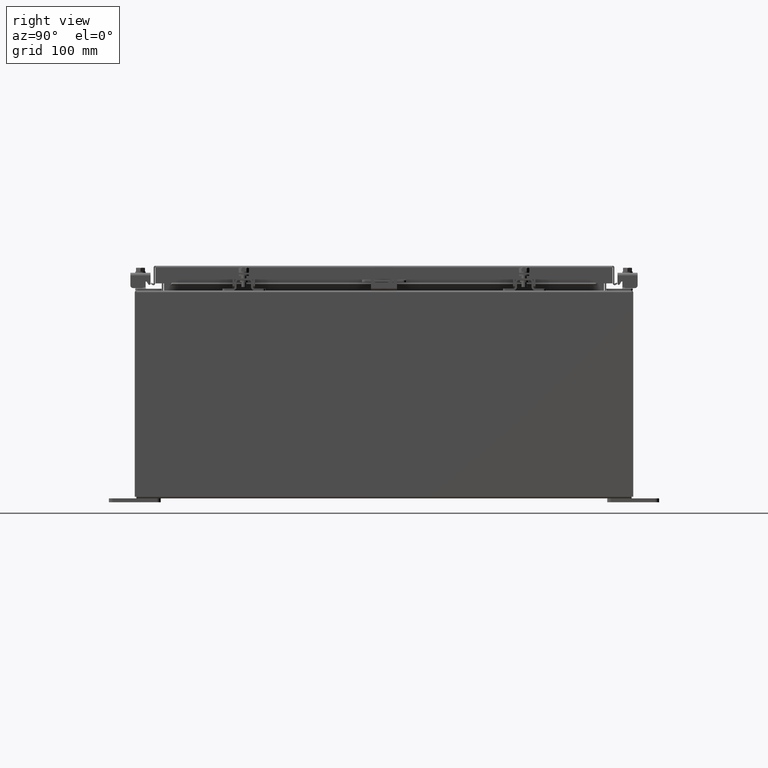
[diagram: clean part render]
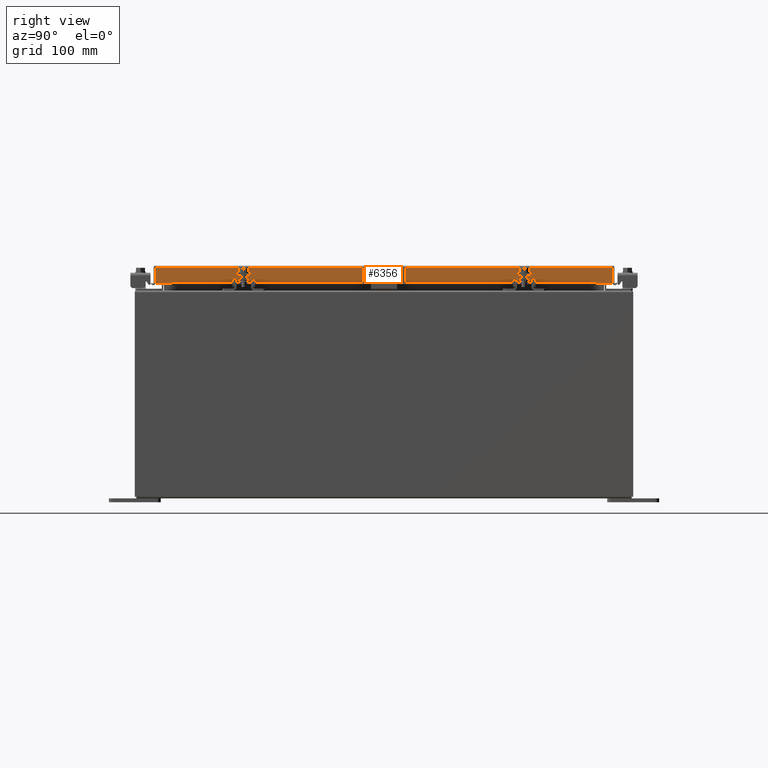
[diagram: same view with one face highlighted and labeled with its STEP entity id]
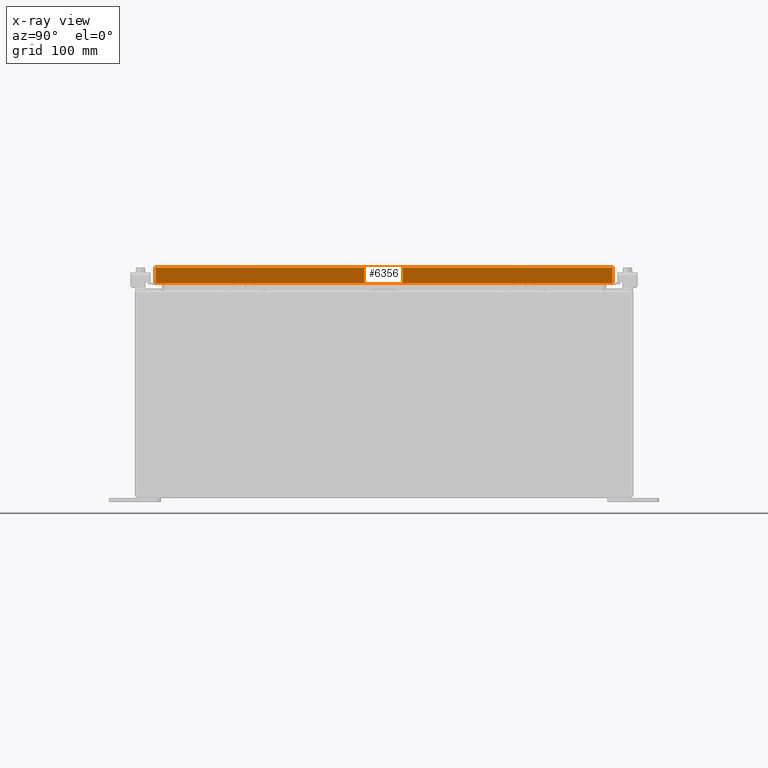
[diagram: x-ray of the same camera — body ghosted, the highlighted face saturated]
A machine part, right view. The second image highlights one B-rep face of the part: STEP entity #6356.
The next image is the same camera in x-ray: the body ghosted, the highlighted face saturated — about 0% of this face is hidden behind the body in this view.
In plain terms, the highlighted planar face has unit normal (1, 0, 0).
Its self-contained STEP definition (entity closure, byte-faithful):
#7 = PLANE ( 'NONE',  #4084 ) ;
#19 = EDGE_CURVE ( 'NONE', #29226, #6363, #24400, .T. ) ;
#59 = CARTESIAN_POINT ( 'NONE',  ( 9.078000000000001200, -11.09399999999999900, -0.8499999999999996400 ) ) ;
#680 = EDGE_LOOP ( 'NONE', ( #25979, #24422, #20872, #18517, #15833, #13775 ) ) ;
#756 = LINE ( 'NONE', #26755, #25148 ) ;
#914 = CARTESIAN_POINT ( 'NONE',  ( 9.077999999999999400, 0.0000000000000000000, 2.585061485449906600E-014 ) ) ;
#923 = LINE ( 'NONE', #20614, #13522 ) ;
#1513 = CARTESIAN_POINT ( 'NONE',  ( 9.078000000000001200, 11.00515786437627400, -0.8499999999999996400 ) ) ;
#1582 = VECTOR ( 'NONE', #16702, 39.37007874015748100 ) ;
#2719 = VERTEX_POINT ( 'NONE', #1513 ) ;
#4084 = AXIS2_PLACEMENT_3D ( 'NONE', #914, #32145, #32108 ) ;
#5413 = EDGE_CURVE ( 'NONE', #9740, #26447, #923, .T. ) ;
#5425 = LINE ( 'NONE', #18025, #24682 ) ;
#6356 = ADVANCED_FACE ( 'NONE', ( #6783 ), #7, .T. ) ;
#6363 = VERTEX_POINT ( 'NONE', #32014 ) ;
#6783 = FACE_OUTER_BOUND ( 'NONE', #680, .T. ) ;
#7109 = EDGE_CURVE ( 'NONE', #6363, #9740, #22470, .T. ) ;
#9740 = VERTEX_POINT ( 'NONE', #11909 ) ;
#10527 = CARTESIAN_POINT ( 'NONE',  ( 9.077999999999994100, 10.25515786437627200, -0.8500000000000010900 ) ) ;
#11909 = CARTESIAN_POINT ( 'NONE',  ( 9.078000000000001200, -11.00515786437626400, -0.8499999999999996400 ) ) ;
#12270 = VECTOR ( 'NONE', #30218, 39.37007874015748100 ) ;
#12871 = CARTESIAN_POINT ( 'NONE',  ( 9.077999999999999400, -11.00515786437626900, -0.08770000000000007000 ) ) ;
#13522 = VECTOR ( 'NONE', #20571, 39.37007874015748100 ) ;
#13661 = VERTEX_POINT ( 'NONE', #14266 ) ;
#13775 = ORIENTED_EDGE ( 'NONE', *, *, #16579, .T. ) ;
#14266 = CARTESIAN_POINT ( 'NONE',  ( 9.077999999999999400, 11.00515786437627100, -0.08770000000000007000 ) ) ;
#15833 = ORIENTED_EDGE ( 'NONE', *, *, #17888, .T. ) ;
#16579 = EDGE_CURVE ( 'NONE', #13661, #26447, #756, .T. ) ;
#16639 = CARTESIAN_POINT ( 'NONE',  ( 9.078000000000001200, -11.09399999999999900, -0.8499999999999996400 ) ) ;
#16702 = DIRECTION ( 'NONE',  ( 0.0000000000000000000, -1.000000000000000000, 0.0000000000000000000 ) ) ;
#17713 = VECTOR ( 'NONE', #24364, 39.37007874015748100 ) ;
#17888 = EDGE_CURVE ( 'NONE', #2719, #13661, #5425, .T. ) ;
#17957 = DIRECTION ( 'NONE',  ( -2.818880942772360100E-015, -6.982962677686267500E-015, 1.000000000000000000 ) ) ;
#18025 = CARTESIAN_POINT ( 'NONE',  ( 9.077999999999999400, 11.00515786437626900, 1.026992214834840500E-013 ) ) ;
#18517 = ORIENTED_EDGE ( 'NONE', *, *, #26889, .F. ) ;
#20491 = LINE ( 'NONE', #59, #12270 ) ;
#20571 = DIRECTION ( 'NONE',  ( -2.818880942772360100E-015, -6.982962677686267500E-015, 1.000000000000000000 ) ) ;
#20614 = CARTESIAN_POINT ( 'NONE',  ( 9.077999999999999400, -11.00515786437626900, -0.07469999999999978000 ) ) ;
#20872 = ORIENTED_EDGE ( 'NONE', *, *, #19, .F. ) ;
#22470 = LINE ( 'NONE', #16639, #1582 ) ;
#24039 = CARTESIAN_POINT ( 'NONE',  ( 9.077999999999994100, 10.25515786437627200, -0.8500000000000010900 ) ) ;
#24364 = DIRECTION ( 'NONE',  ( 0.0000000000000000000, -1.000000000000000000, 0.0000000000000000000 ) ) ;
#24400 = LINE ( 'NONE', #24039, #17713 ) ;
#24422 = ORIENTED_EDGE ( 'NONE', *, *, #7109, .F. ) ;
#24682 = VECTOR ( 'NONE', #17957, 39.37007874015748100 ) ;
#25148 = VECTOR ( 'NONE', #26681, 39.37007874015748100 ) ;
#25979 = ORIENTED_EDGE ( 'NONE', *, *, #5413, .F. ) ;
#26447 = VERTEX_POINT ( 'NONE', #12871 ) ;
#26681 = DIRECTION ( 'NONE',  ( 0.0000000000000000000, -1.000000000000000000, 0.0000000000000000000 ) ) ;
#26755 = CARTESIAN_POINT ( 'NONE',  ( 9.077999999999999400, 0.0000000000000000000, -0.08770000000000007000 ) ) ;
#26889 = EDGE_CURVE ( 'NONE', #2719, #29226, #20491, .T. ) ;
#29226 = VERTEX_POINT ( 'NONE', #10527 ) ;
#30218 = DIRECTION ( 'NONE',  ( 0.0000000000000000000, -1.000000000000000000, 0.0000000000000000000 ) ) ;
#32014 = CARTESIAN_POINT ( 'NONE',  ( 9.077999999999994100, -10.25515786437626400, -0.8500000000000010900 ) ) ;
#32108 = DIRECTION ( 'NONE',  ( 2.818880942772360100E-015, 0.0000000000000000000, -1.000000000000000000 ) ) ;
#32145 = DIRECTION ( 'NONE',  ( 1.000000000000000000, 0.0000000000000000000, 2.818880942772360100E-015 ) ) ;